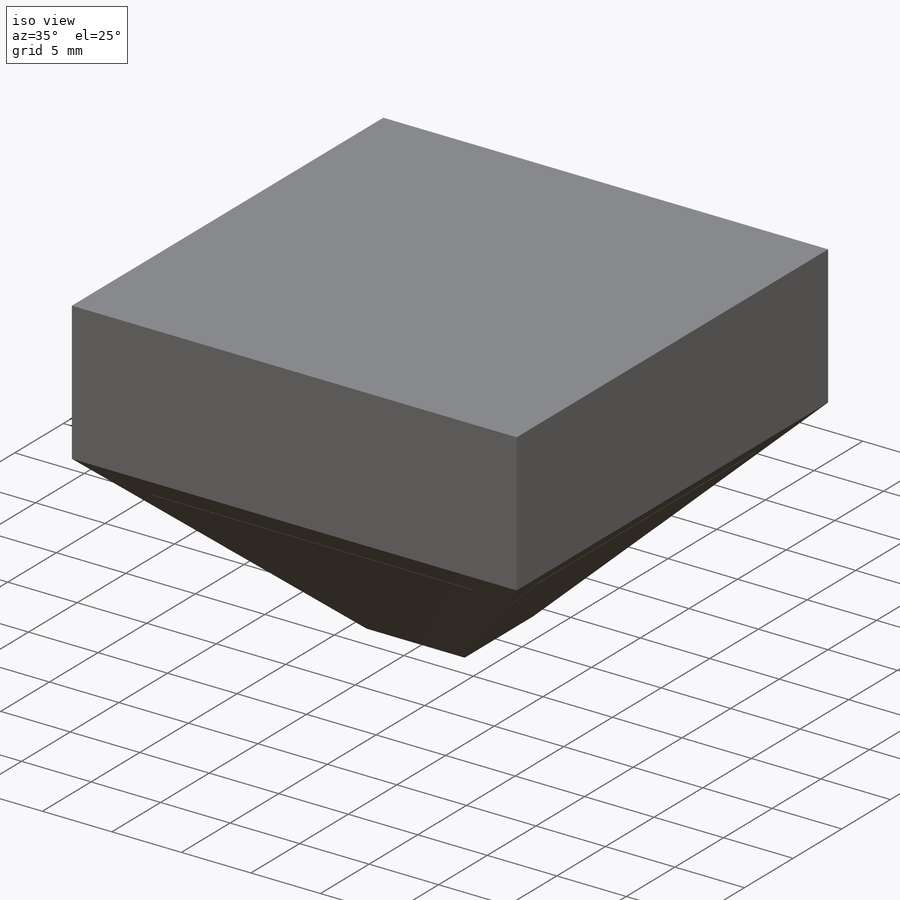
[diagram: iso view]
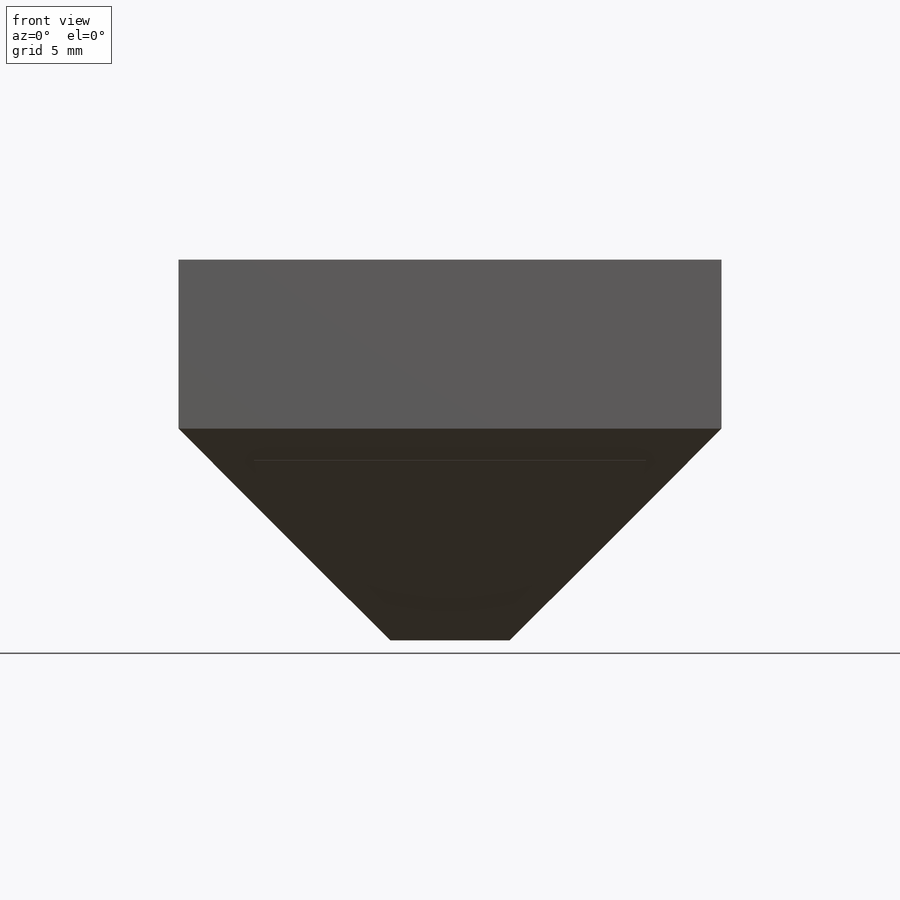
[diagram: front view]
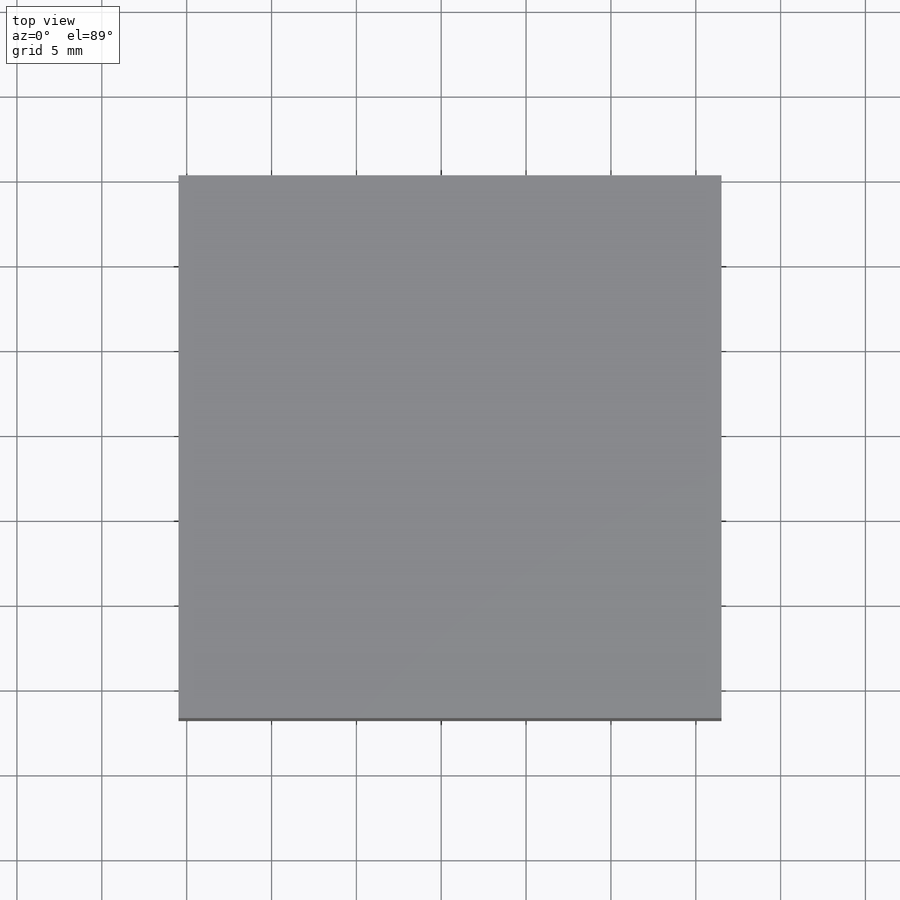
[diagram: top view]
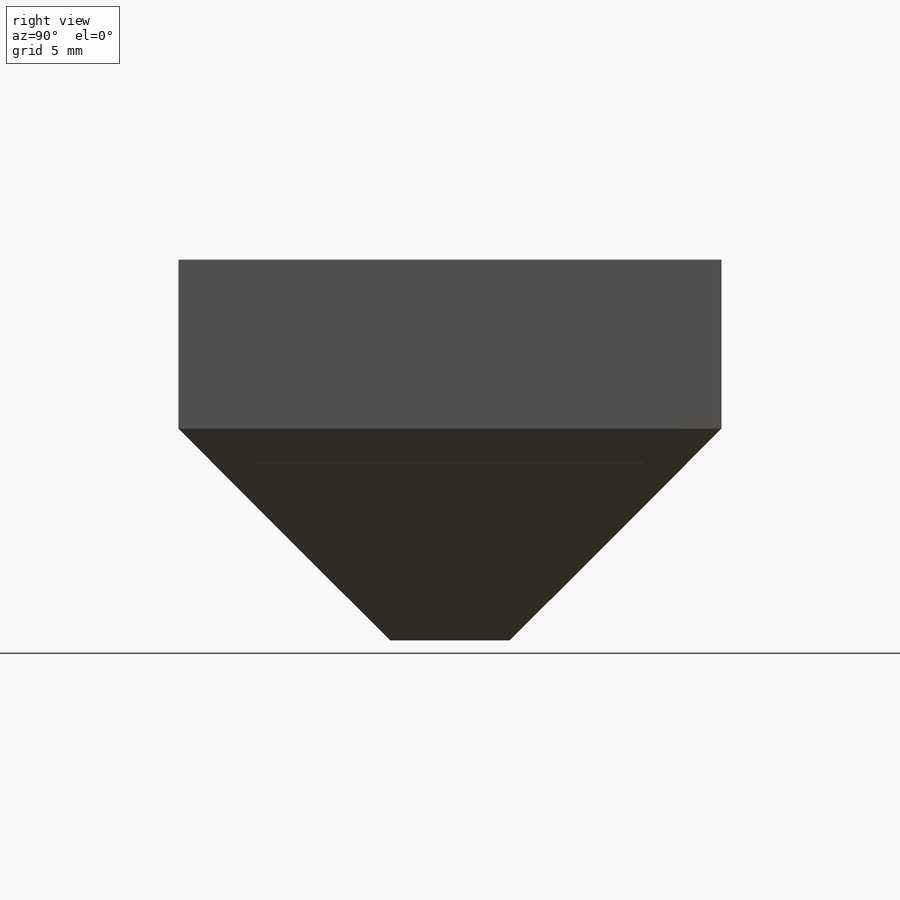
[diagram: right view]
SOLIDWORKS PART (.sldprt)
format: sldprt  version: not decoded by parser v0  size: 665,600 bytes
history: native  units: mm
features: sketch x6, extrude x5, plane x3, material x1, cut_extrude x1 (+9 scaffold rows collapsed)
feature tree (25):
  scaffold x9  (default folders/planes/origin — collapsed)
  material  "Material <sin especificar>"
  plane  "Alzado"
  plane  "Planta"
  plane  "Vista lateral"
  sketch  "Croquis1"  dims[c1.D1=16.0mm c2.D1=45.0deg c2.D2=32.0mm c2.D3=~9.954915mm c2.D4=16.0mm c3.D4=~24.933644deg c4.D4=~12.476567mm c4.D5=~17.646958mm c5.D5=45.0deg c5.D6=32.0mm c5.D1=~12.476567mm c6.D1=135.0deg c6.D4=12.48mm c7.D4=135.0deg c7.D5=~12.476567mm]
  extrude  "Saliente-Extruir1"  Depth=32mm
  sketch  "Croquis2"  dims[c1.D1=~12.476567mm c2.D1=135.0deg c2.D2=~12.476567mm c3.D2=135.0deg c3.D3=~12.476567mm c4.D3=45.0deg c5.D3=~12.476567mm]
  cut_extrude  "Cortar-Extruir2"  Depth=33mm
  sketch  "Croquis3"  dims[D1=~25.98391mm]
  extrude  "Saliente-Extruir2"  Depth=0.01mm
  sketch  "Croquis4"  dims[D1=~6.685514mm]
  extrude  "Saliente-Extruir3"  Depth=0.01mm
  sketch  "Croquis5"  dims[D1=~27.838584mm]
  extrude  "Saliente-Extruir5"  Depth=0.01mm
  sketch  "Croquis6"  dims[D1=35.5001mm]
  extrude  "Saliente-Extruir6"  Depth=0.01mm
decode coverage: 12 of 12 modeling features carry decoded parameters
note: ~ marks probable driven/reference dimensions
note: suppression state not decoded; provenance and decode notes live in map.json
